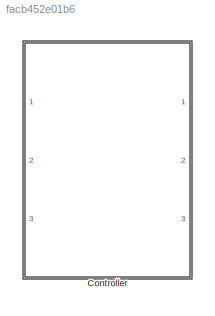
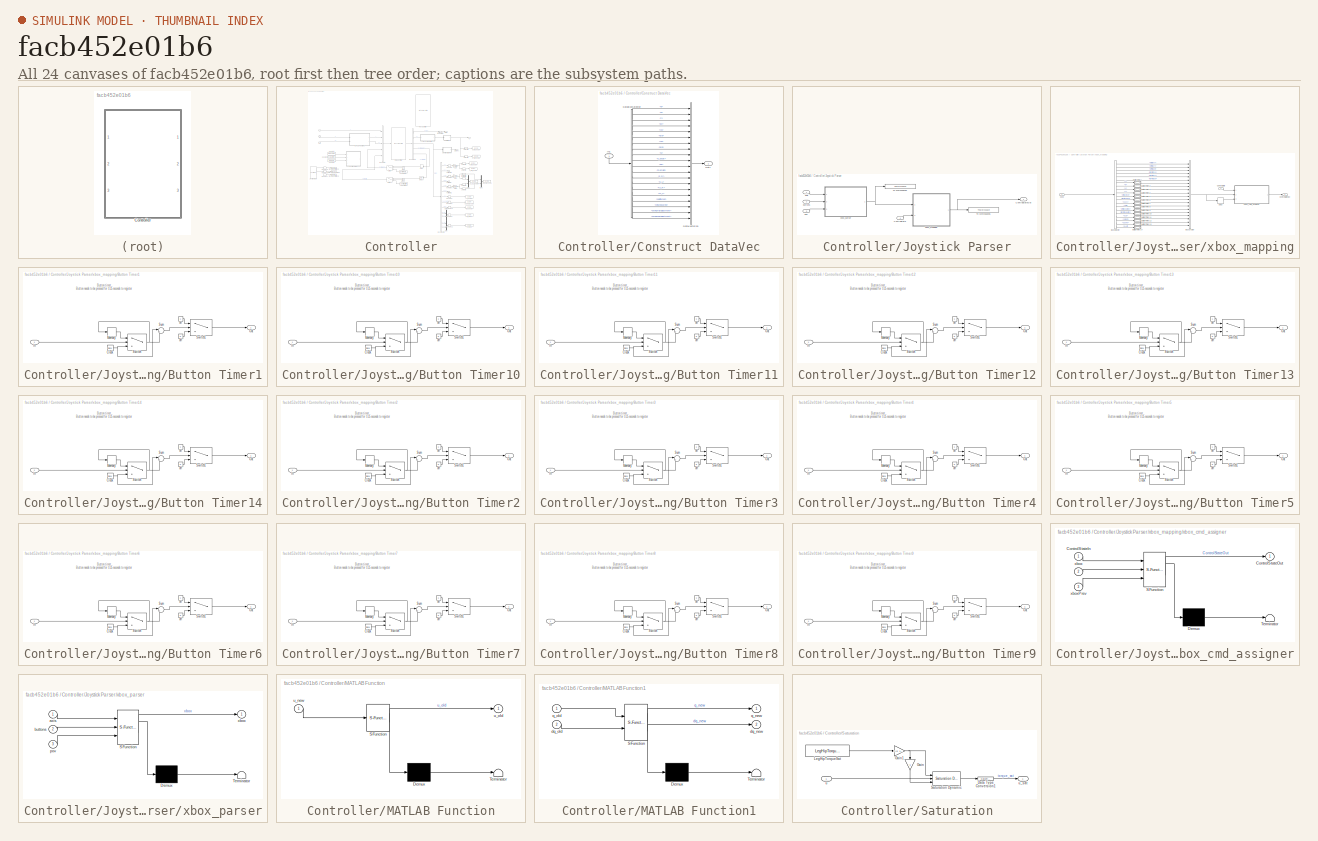
[diagram: thumbnail index - all 24 canvases of the model, root first then tree order]
MODEL slx_facb452e01b6
KIND library
CONFIG AbsTol = auto
CONFIG FixedStep = auto
CONFIG MaxStep = auto
CONFIG MinStep = auto
CONFIG RelTol = 1e-3
CONFIG SampleTimeConstraint = Unconstrained
CONFIG Solver = ode45
CONFIG SolverMode = Auto
CONFIG SolverName = ode45
CONFIG StartTime = 0.0
CONFIG StopTime = 10.0
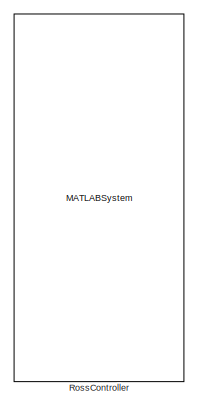
[diagram: Controller - part 1/4, top center region]
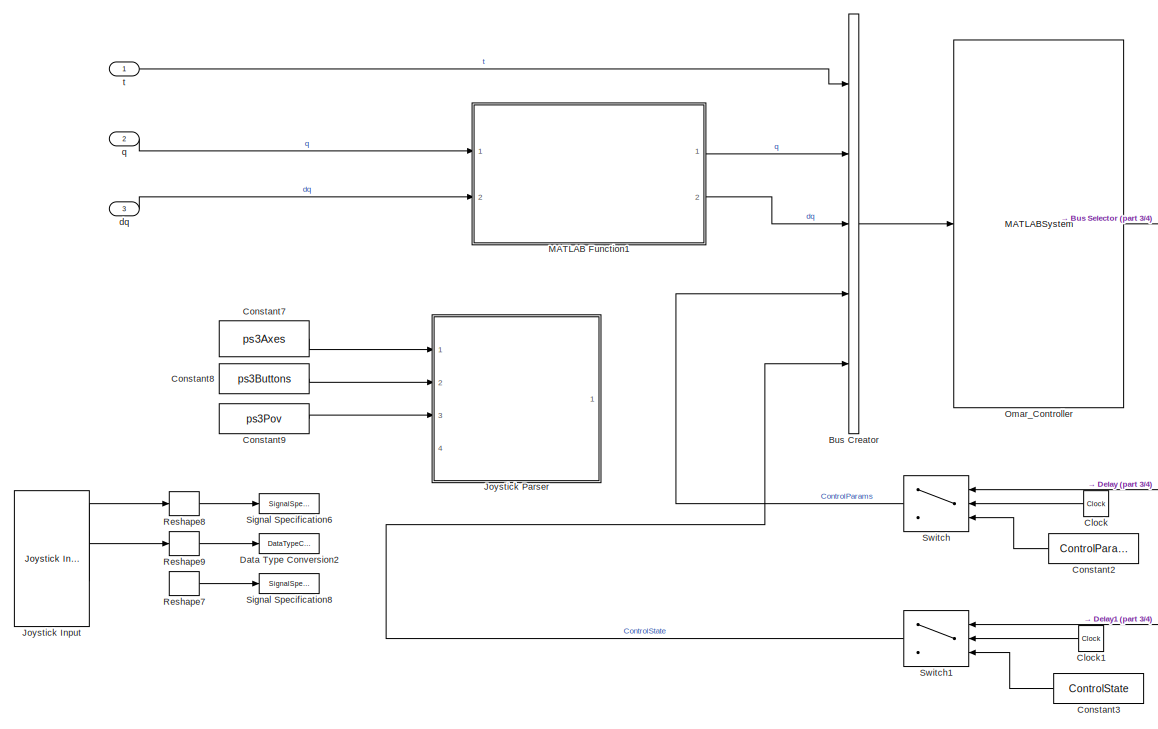
[diagram: Controller - part 2/4, middle left region]
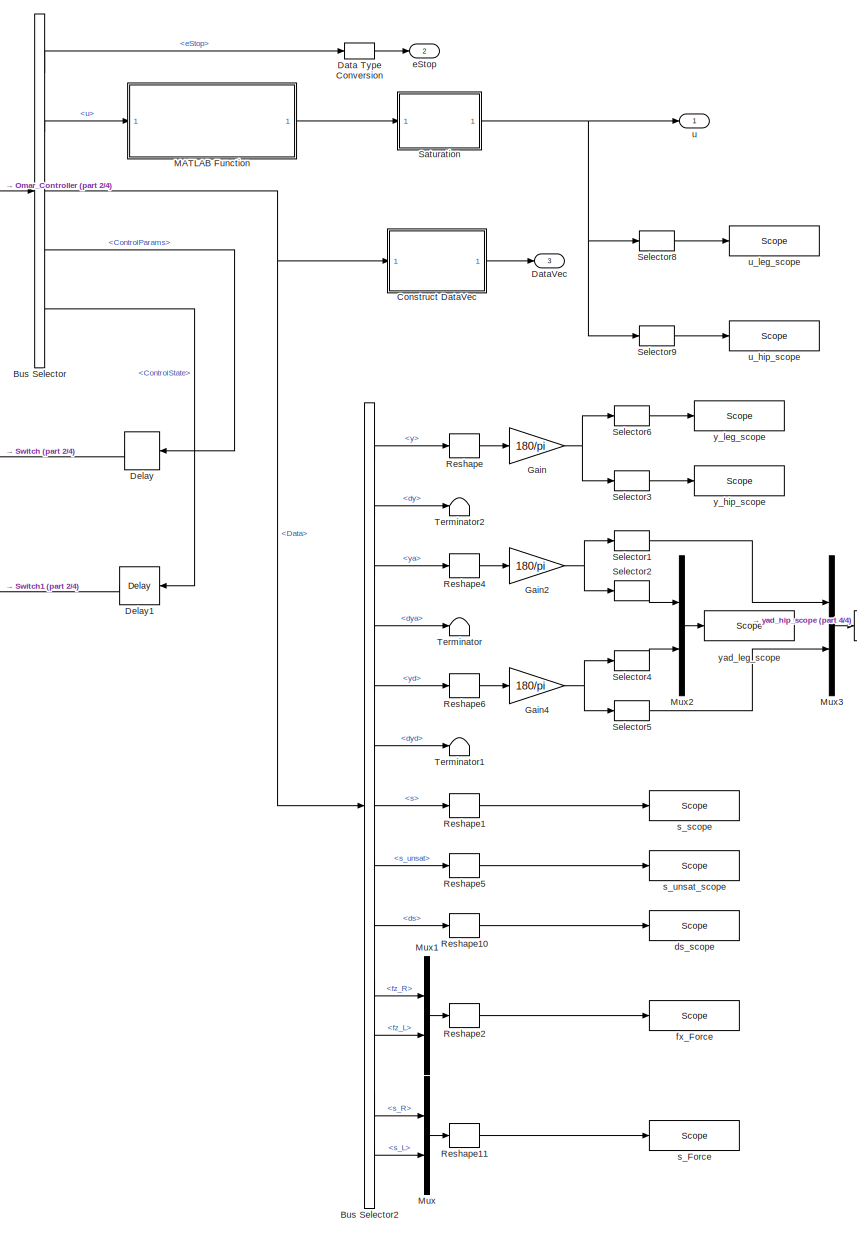
[diagram: Controller - part 3/4, right side, full height]
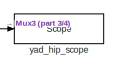
[diagram: Controller - part 4/4, middle right region]
BLOCK [SubSystem] Controller
  Ports = [3, 3]
  RequestExecContextInheritance = off
  Variant = off
BLOCK [BusCreator] Controller/Bus Creator
  DisplayOption = bar
  InheritFromInputs = on
  Inputs = 't','q','dq','ControlParams','ControlState'
  OutDataTypeStr = Bus: Input_bus
  Ports = [5, 1]
BLOCK [BusSelector] Controller/Bus Selector
  OutputSignals = eStop,u,Data,ControlParams,ControlState
  Ports = [1, 5]
BLOCK [BusSelector] Controller/Bus Selector2
  OutputSignals = y,dy,ya,dya,yd,dyd,s,s_unsat,ds,fz_R,fz_L,s_R,s_L
  Ports = [1, 13]
BLOCK [Clock] Controller/Clock
BLOCK [Clock] Controller/Clock1
BLOCK [Constant] Controller/Constant2
  OutDataTypeStr = Bus: ControlParams_bus
  Value = ControlParams
BLOCK [Constant] Controller/Constant3
  OutDataTypeStr = Bus: ControlState_bus
  Value = ControlState
BLOCK [Constant] Controller/Constant7
  Commented = on
  Value = ps3Axes
BLOCK [Constant] Controller/Constant8
  Commented = on
  Value = ps3Buttons
BLOCK [Constant] Controller/Constant9
  Commented = on
  Value = ps3Pov
BLOCK [SubSystem] Controller/Construct DataVec
  Ports = [1, 1]
  RequestExecContextInheritance = off
  Variant = off
BLOCK [BusSelector] Controller/Construct DataVec/DataBusSelector
  OutputSignals = q,u,y,dy,ya,dya,yd,dyd,s,s_unsat,ds,Domain,s_R,s_L,fz_R,fz_L,velFiltered,velMeasured,swingHipAdjustment,swingLegAdjustment
  Ports = [1, 20]
BLOCK [Concatenate] Controller/Construct DataVec/DataVectorize
  NumInputs = 20
  Ports = [20, 1]
BLOCK [Inport] Controller/Construct DataVec/In1
  IconDisplay = Port number
BLOCK [Outport] Controller/Construct DataVec/Out1
  IconDisplay = Port number
BLOCK [DataTypeConversion] Controller/Data Type Conversion
  OutDataTypeStr = double
  RndMeth = Floor
  SaturateOnIntegerOverflow = off
BLOCK [DataTypeConversion] Controller/Data Type Conversion2
  Commented = on
  OutDataTypeStr = double
  RndMeth = Floor
  SaturateOnIntegerOverflow = off
BLOCK [Outport] Controller/DataVec
  IconDisplay = Port number
  Port = 3
BLOCK [Delay] Controller/Delay
  DelayLength = 1
  InitialCondition = 0
  InputPortMap = u0
  InputProcessing = Inherited
  Ports = [1, 1]
BLOCK [Delay] Controller/Delay1
  DelayLength = 1
  InitialCondition = 0
  InputPortMap = u0
  InputProcessing = Inherited
  Ports = [1, 1]
BLOCK [Gain] Controller/Gain
  Gain = 180/pi
  OutDataTypeStr = Inherit: Inherit via internal rule
  ParamDataTypeStr = Inherit: Inherit via internal rule
  SaturateOnIntegerOverflow = off
BLOCK [Gain] Controller/Gain2
  Gain = 180/pi
  OutDataTypeStr = Inherit: Inherit via internal rule
  ParamDataTypeStr = Inherit: Inherit via internal rule
  SaturateOnIntegerOverflow = off
BLOCK [Gain] Controller/Gain4
  Gain = 180/pi
  OutDataTypeStr = Inherit: Inherit via internal rule
  ParamDataTypeStr = Inherit: Inherit via internal rule
  SaturateOnIntegerOverflow = off
BLOCK [Reference] Controller/Joystick Input  REF=vrlib/Joystick Input
  Commented = on
  Ports = [0, 2]
  SourceBlock = vrlib/Joystick Input
  SourceType = Joystick Input
BLOCK [SubSystem] Controller/Joystick Parser
  Commented = on
  Ports = [4, 1]
  RequestExecContextInheritance = off
  Variant = off
BLOCK [Inport] Controller/Joystick Parser/ControlState
  IconDisplay = Port number
  OutDataTypeStr = Bus: ControlState_bus
  Port = 4
BLOCK [Outport] Controller/Joystick Parser/ControlStateOut
  IconDisplay = Port number
  OutDataTypeStr = Bus: ControlState_bus
BLOCK [ToWorkspace] Controller/Joystick Parser/To Workspace5
  MaxDataPoints = inf
  Ports = [1]
  SampleTime = -1
  SaveFormat = Timeseries
  VariableName = xboxOut
BLOCK [ToWorkspace] Controller/Joystick Parser/To Workspace6
  MaxDataPoints = inf
  Ports = [1]
  SampleTime = -1
  SaveFormat = Timeseries
  VariableName = ControlStateOut
BLOCK [Inport] Controller/Joystick Parser/axis
  IconDisplay = Port number
BLOCK [Inport] Controller/Joystick Parser/buttons
  IconDisplay = Port number
  Port = 2
BLOCK [Inport] Controller/Joystick Parser/pov
  IconDisplay = Port number
  Port = 3
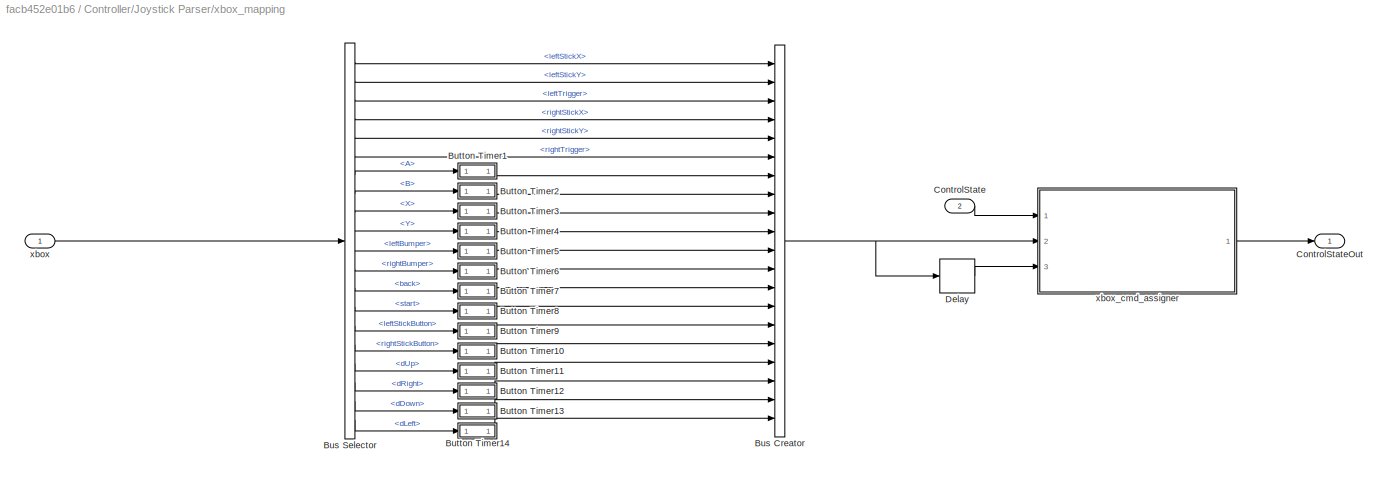
BLOCK [SubSystem] Controller/Joystick Parser/xbox_mapping
  Ports = [2, 1]
  RequestExecContextInheritance = off
  Variant = off
BLOCK [BusCreator] Controller/Joystick Parser/xbox_mapping/Bus Creator
  DisplayOption = bar
  InheritFromInputs = on
  Inputs = 20
  NonVirtualBus = on
  OutDataTypeStr = Bus: xbox_bus
  Ports = [20, 1]
BLOCK [BusSelector] Controller/Joystick Parser/xbox_mapping/Bus Selector
  OutputSignals = leftStickX,leftStickY,leftTrigger,rightStickX,rightStickY,rightTrigger,A,B,X,Y,leftBumper,rightBumper,back,start,leftStickButton,rightStickButton,dUp,dRight,dDown,dLeft
  Ports = [1, 20]
BLOCK [SubSystem] Controller/Joystick Parser/xbox_mapping/Button Timer1
  Ports = [1, 1]
  RequestExecContextInheritance = off
  Variant = off
BLOCK [Clock] Controller/Joystick Parser/xbox_mapping/Button Timer1/Clock
BLOCK [Inport] Controller/Joystick Parser/xbox_mapping/Button Timer1/In
  IconDisplay = Port number
BLOCK [Memory] Controller/Joystick Parser/xbox_mapping/Button Timer1/Memory
BLOCK [Outport] Controller/Joystick Parser/xbox_mapping/Button Timer1/Out
  IconDisplay = Port number
BLOCK [Sum] Controller/Joystick Parser/xbox_mapping/Button Timer1/Sum
  IconShape = round
  InputSameDT = off
  Inputs = |+-
  OutDataTypeStr = Inherit: Inherit via internal rule
  Ports = [2, 1]
  SaturateOnIntegerOverflow = off
BLOCK [Switch] Controller/Joystick Parser/xbox_mapping/Button Timer1/Switch
  Criteria = u2 > Threshold
  InputSameDT = off
  SaturateOnIntegerOverflow = off
BLOCK [Switch] Controller/Joystick Parser/xbox_mapping/Button Timer1/Switch1
  Criteria = u2 > Threshold
  InputSameDT = off
  SaturateOnIntegerOverflow = off
  Threshold = 0.25
BLOCK [Constant] Controller/Joystick Parser/xbox_mapping/Button Timer1/off
  Value = 0
BLOCK [Constant] Controller/Joystick Parser/xbox_mapping/Button Timer1/on
BLOCK [SubSystem] Controller/Joystick Parser/xbox_mapping/Button Timer10
  Ports = [1, 1]
  RequestExecContextInheritance = off
  Variant = off
BLOCK [Clock] Controller/Joystick Parser/xbox_mapping/Button Timer10/Clock
BLOCK [Inport] Controller/Joystick Parser/xbox_mapping/Button Timer10/In
  IconDisplay = Port number
BLOCK [Memory] Controller/Joystick Parser/xbox_mapping/Button Timer10/Memory
BLOCK [Outport] Controller/Joystick Parser/xbox_mapping/Button Timer10/Out
  IconDisplay = Port number
BLOCK [Sum] Controller/Joystick Parser/xbox_mapping/Button Timer10/Sum
  IconShape = round
  InputSameDT = off
  Inputs = |+-
  OutDataTypeStr = Inherit: Inherit via internal rule
  Ports = [2, 1]
  SaturateOnIntegerOverflow = off
BLOCK [Switch] Controller/Joystick Parser/xbox_mapping/Button Timer10/Switch
  Criteria = u2 > Threshold
  InputSameDT = off
  SaturateOnIntegerOverflow = off
BLOCK [Switch] Controller/Joystick Parser/xbox_mapping/Button Timer10/Switch1
  Criteria = u2 > Threshold
  InputSameDT = off
  SaturateOnIntegerOverflow = off
  Threshold = 0.25
BLOCK [Constant] Controller/Joystick Parser/xbox_mapping/Button Timer10/off
  Value = 0
BLOCK [Constant] Controller/Joystick Parser/xbox_mapping/Button Timer10/on
BLOCK [SubSystem] Controller/Joystick Parser/xbox_mapping/Button Timer11
  Ports = [1, 1]
  RequestExecContextInheritance = off
  Variant = off
BLOCK [Clock] Controller/Joystick Parser/xbox_mapping/Button Timer11/Clock
BLOCK [Inport] Controller/Joystick Parser/xbox_mapping/Button Timer11/In
  IconDisplay = Port number
BLOCK [Memory] Controller/Joystick Parser/xbox_mapping/Button Timer11/Memory
BLOCK [Outport] Controller/Joystick Parser/xbox_mapping/Button Timer11/Out
  IconDisplay = Port number
BLOCK [Sum] Controller/Joystick Parser/xbox_mapping/Button Timer11/Sum
  IconShape = round
  InputSameDT = off
  Inputs = |+-
  OutDataTypeStr = Inherit: Inherit via internal rule
  Ports = [2, 1]
  SaturateOnIntegerOverflow = off
BLOCK [Switch] Controller/Joystick Parser/xbox_mapping/Button Timer11/Switch
  Criteria = u2 > Threshold
  InputSameDT = off
  SaturateOnIntegerOverflow = off
BLOCK [Switch] Controller/Joystick Parser/xbox_mapping/Button Timer11/Switch1
  Criteria = u2 > Threshold
  InputSameDT = off
  SaturateOnIntegerOverflow = off
  Threshold = 0.25
BLOCK [Constant] Controller/Joystick Parser/xbox_mapping/Button Timer11/off
  Value = 0
BLOCK [Constant] Controller/Joystick Parser/xbox_mapping/Button Timer11/on
BLOCK [SubSystem] Controller/Joystick Parser/xbox_mapping/Button Timer12
  Ports = [1, 1]
  RequestExecContextInheritance = off
  Variant = off
BLOCK [Clock] Controller/Joystick Parser/xbox_mapping/Button Timer12/Clock
BLOCK [Inport] Controller/Joystick Parser/xbox_mapping/Button Timer12/In
  IconDisplay = Port number
BLOCK [Memory] Controller/Joystick Parser/xbox_mapping/Button Timer12/Memory
BLOCK [Outport] Controller/Joystick Parser/xbox_mapping/Button Timer12/Out
  IconDisplay = Port number
BLOCK [Sum] Controller/Joystick Parser/xbox_mapping/Button Timer12/Sum
  IconShape = round
  InputSameDT = off
  Inputs = |+-
  OutDataTypeStr = Inherit: Inherit via internal rule
  Ports = [2, 1]
  SaturateOnIntegerOverflow = off
BLOCK [Switch] Controller/Joystick Parser/xbox_mapping/Button Timer12/Switch
  Criteria = u2 > Threshold
  InputSameDT = off
  SaturateOnIntegerOverflow = off
BLOCK [Switch] Controller/Joystick Parser/xbox_mapping/Button Timer12/Switch1
  Criteria = u2 > Threshold
  InputSameDT = off
  SaturateOnIntegerOverflow = off
  Threshold = 0.25
BLOCK [Constant] Controller/Joystick Parser/xbox_mapping/Button Timer12/off
  Value = 0
BLOCK [Constant] Controller/Joystick Parser/xbox_mapping/Button Timer12/on
BLOCK [SubSystem] Controller/Joystick Parser/xbox_mapping/Button Timer13
  Ports = [1, 1]
  RequestExecContextInheritance = off
  Variant = off
BLOCK [Clock] Controller/Joystick Parser/xbox_mapping/Button Timer13/Clock
BLOCK [Inport] Controller/Joystick Parser/xbox_mapping/Button Timer13/In
  IconDisplay = Port number
BLOCK [Memory] Controller/Joystick Parser/xbox_mapping/Button Timer13/Memory
BLOCK [Outport] Controller/Joystick Parser/xbox_mapping/Button Timer13/Out
  IconDisplay = Port number
BLOCK [Sum] Controller/Joystick Parser/xbox_mapping/Button Timer13/Sum
  IconShape = round
  InputSameDT = off
  Inputs = |+-
  OutDataTypeStr = Inherit: Inherit via internal rule
  Ports = [2, 1]
  SaturateOnIntegerOverflow = off
BLOCK [Switch] Controller/Joystick Parser/xbox_mapping/Button Timer13/Switch
  Criteria = u2 > Threshold
  InputSameDT = off
  SaturateOnIntegerOverflow = off
BLOCK [Switch] Controller/Joystick Parser/xbox_mapping/Button Timer13/Switch1
  Criteria = u2 > Threshold
  InputSameDT = off
  SaturateOnIntegerOverflow = off
  Threshold = 0.25
BLOCK [Constant] Controller/Joystick Parser/xbox_mapping/Button Timer13/off
  Value = 0
BLOCK [Constant] Controller/Joystick Parser/xbox_mapping/Button Timer13/on
BLOCK [SubSystem] Controller/Joystick Parser/xbox_mapping/Button Timer14
  Ports = [1, 1]
  RequestExecContextInheritance = off
  Variant = off
BLOCK [Clock] Controller/Joystick Parser/xbox_mapping/Button Timer14/Clock
BLOCK [Inport] Controller/Joystick Parser/xbox_mapping/Button Timer14/In
  IconDisplay = Port number
BLOCK [Memory] Controller/Joystick Parser/xbox_mapping/Button Timer14/Memory
BLOCK [Outport] Controller/Joystick Parser/xbox_mapping/Button Timer14/Out
  IconDisplay = Port number
BLOCK [Sum] Controller/Joystick Parser/xbox_mapping/Button Timer14/Sum
  IconShape = round
  InputSameDT = off
  Inputs = |+-
  OutDataTypeStr = Inherit: Inherit via internal rule
  Ports = [2, 1]
  SaturateOnIntegerOverflow = off
BLOCK [Switch] Controller/Joystick Parser/xbox_mapping/Button Timer14/Switch
  Criteria = u2 > Threshold
  InputSameDT = off
  SaturateOnIntegerOverflow = off
BLOCK [Switch] Controller/Joystick Parser/xbox_mapping/Button Timer14/Switch1
  Criteria = u2 > Threshold
  InputSameDT = off
  SaturateOnIntegerOverflow = off
  Threshold = 0.25
BLOCK [Constant] Controller/Joystick Parser/xbox_mapping/Button Timer14/off
  Value = 0
BLOCK [Constant] Controller/Joystick Parser/xbox_mapping/Button Timer14/on
BLOCK [SubSystem] Controller/Joystick Parser/xbox_mapping/Button Timer2
  Ports = [1, 1]
  RequestExecContextInheritance = off
  Variant = off
BLOCK [Clock] Controller/Joystick Parser/xbox_mapping/Button Timer2/Clock
BLOCK [Inport] Controller/Joystick Parser/xbox_mapping/Button Timer2/In
  IconDisplay = Port number
BLOCK [Memory] Controller/Joystick Parser/xbox_mapping/Button Timer2/Memory
BLOCK [Outport] Controller/Joystick Parser/xbox_mapping/Button Timer2/Out
  IconDisplay = Port number
BLOCK [Sum] Controller/Joystick Parser/xbox_mapping/Button Timer2/Sum
  IconShape = round
  InputSameDT = off
  Inputs = |+-
  OutDataTypeStr = Inherit: Inherit via internal rule
  Ports = [2, 1]
  SaturateOnIntegerOverflow = off
BLOCK [Switch] Controller/Joystick Parser/xbox_mapping/Button Timer2/Switch
  Criteria = u2 > Threshold
  InputSameDT = off
  SaturateOnIntegerOverflow = off
BLOCK [Switch] Controller/Joystick Parser/xbox_mapping/Button Timer2/Switch1
  Criteria = u2 > Threshold
  InputSameDT = off
  SaturateOnIntegerOverflow = off
  Threshold = 0.25
BLOCK [Constant] Controller/Joystick Parser/xbox_mapping/Button Timer2/off
  Value = 0
BLOCK [Constant] Controller/Joystick Parser/xbox_mapping/Button Timer2/on
BLOCK [SubSystem] Controller/Joystick Parser/xbox_mapping/Button Timer3
  Ports = [1, 1]
  RequestExecContextInheritance = off
  Variant = off
BLOCK [Clock] Controller/Joystick Parser/xbox_mapping/Button Timer3/Clock
BLOCK [Inport] Controller/Joystick Parser/xbox_mapping/Button Timer3/In
  IconDisplay = Port number
BLOCK [Memory] Controller/Joystick Parser/xbox_mapping/Button Timer3/Memory
BLOCK [Outport] Controller/Joystick Parser/xbox_mapping/Button Timer3/Out
  IconDisplay = Port number
BLOCK [Sum] Controller/Joystick Parser/xbox_mapping/Button Timer3/Sum
  IconShape = round
  InputSameDT = off
  Inputs = |+-
  OutDataTypeStr = Inherit: Inherit via internal rule
  Ports = [2, 1]
  SaturateOnIntegerOverflow = off
BLOCK [Switch] Controller/Joystick Parser/xbox_mapping/Button Timer3/Switch
  Criteria = u2 > Threshold
  InputSameDT = off
  SaturateOnIntegerOverflow = off
BLOCK [Switch] Controller/Joystick Parser/xbox_mapping/Button Timer3/Switch1
  Criteria = u2 > Threshold
  InputSameDT = off
  SaturateOnIntegerOverflow = off
  Threshold = 0.25
BLOCK [Constant] Controller/Joystick Parser/xbox_mapping/Button Timer3/off
  Value = 0
BLOCK [Constant] Controller/Joystick Parser/xbox_mapping/Button Timer3/on
BLOCK [SubSystem] Controller/Joystick Parser/xbox_mapping/Button Timer4
  Ports = [1, 1]
  RequestExecContextInheritance = off
  Variant = off
BLOCK [Clock] Controller/Joystick Parser/xbox_mapping/Button Timer4/Clock
BLOCK [Inport] Controller/Joystick Parser/xbox_mapping/Button Timer4/In
  IconDisplay = Port number
BLOCK [Memory] Controller/Joystick Parser/xbox_mapping/Button Timer4/Memory
BLOCK [Outport] Controller/Joystick Parser/xbox_mapping/Button Timer4/Out
  IconDisplay = Port number
BLOCK [Sum] Controller/Joystick Parser/xbox_mapping/Button Timer4/Sum
  IconShape = round
  InputSameDT = off
  Inputs = |+-
  OutDataTypeStr = Inherit: Inherit via internal rule
  Ports = [2, 1]
  SaturateOnIntegerOverflow = off
BLOCK [Switch] Controller/Joystick Parser/xbox_mapping/Button Timer4/Switch
  Criteria = u2 > Threshold
  InputSameDT = off
  SaturateOnIntegerOverflow = off
BLOCK [Switch] Controller/Joystick Parser/xbox_mapping/Button Timer4/Switch1
  Criteria = u2 > Threshold
  InputSameDT = off
  SaturateOnIntegerOverflow = off
  Threshold = 0.25
BLOCK [Constant] Controller/Joystick Parser/xbox_mapping/Button Timer4/off
  Value = 0
BLOCK [Constant] Controller/Joystick Parser/xbox_mapping/Button Timer4/on
BLOCK [SubSystem] Controller/Joystick Parser/xbox_mapping/Button Timer5
  Ports = [1, 1]
  RequestExecContextInheritance = off
  Variant = off
BLOCK [Clock] Controller/Joystick Parser/xbox_mapping/Button Timer5/Clock
BLOCK [Inport] Controller/Joystick Parser/xbox_mapping/Button Timer5/In
  IconDisplay = Port number
BLOCK [Memory] Controller/Joystick Parser/xbox_mapping/Button Timer5/Memory
BLOCK [Outport] Controller/Joystick Parser/xbox_mapping/Button Timer5/Out
  IconDisplay = Port number
BLOCK [Sum] Controller/Joystick Parser/xbox_mapping/Button Timer5/Sum
  IconShape = round
  InputSameDT = off
  Inputs = |+-
  OutDataTypeStr = Inherit: Inherit via internal rule
  Ports = [2, 1]
  SaturateOnIntegerOverflow = off
BLOCK [Switch] Controller/Joystick Parser/xbox_mapping/Button Timer5/Switch
  Criteria = u2 > Threshold
  InputSameDT = off
  SaturateOnIntegerOverflow = off
BLOCK [Switch] Controller/Joystick Parser/xbox_mapping/Button Timer5/Switch1
  Criteria = u2 > Threshold
  InputSameDT = off
  SaturateOnIntegerOverflow = off
  Threshold = 0.25
BLOCK [Constant] Controller/Joystick Parser/xbox_mapping/Button Timer5/off
  Value = 0
BLOCK [Constant] Controller/Joystick Parser/xbox_mapping/Button Timer5/on
BLOCK [SubSystem] Controller/Joystick Parser/xbox_mapping/Button Timer6
  Ports = [1, 1]
  RequestExecContextInheritance = off
  Variant = off
BLOCK [Clock] Controller/Joystick Parser/xbox_mapping/Button Timer6/Clock
BLOCK [Inport] Controller/Joystick Parser/xbox_mapping/Button Timer6/In
  IconDisplay = Port number
BLOCK [Memory] Controller/Joystick Parser/xbox_mapping/Button Timer6/Memory
BLOCK [Outport] Controller/Joystick Parser/xbox_mapping/Button Timer6/Out
  IconDisplay = Port number
BLOCK [Sum] Controller/Joystick Parser/xbox_mapping/Button Timer6/Sum
  IconShape = round
  InputSameDT = off
  Inputs = |+-
  OutDataTypeStr = Inherit: Inherit via internal rule
  Ports = [2, 1]
  SaturateOnIntegerOverflow = off
BLOCK [Switch] Controller/Joystick Parser/xbox_mapping/Button Timer6/Switch
  Criteria = u2 > Threshold
  InputSameDT = off
  SaturateOnIntegerOverflow = off
BLOCK [Switch] Controller/Joystick Parser/xbox_mapping/Button Timer6/Switch1
  Criteria = u2 > Threshold
  InputSameDT = off
  SaturateOnIntegerOverflow = off
  Threshold = 0.25
BLOCK [Constant] Controller/Joystick Parser/xbox_mapping/Button Timer6/off
  Value = 0
BLOCK [Constant] Controller/Joystick Parser/xbox_mapping/Button Timer6/on
BLOCK [SubSystem] Controller/Joystick Parser/xbox_mapping/Button Timer7
  Ports = [1, 1]
  RequestExecContextInheritance = off
  Variant = off
BLOCK [Clock] Controller/Joystick Parser/xbox_mapping/Button Timer7/Clock
BLOCK [Inport] Controller/Joystick Parser/xbox_mapping/Button Timer7/In
  IconDisplay = Port number
BLOCK [Memory] Controller/Joystick Parser/xbox_mapping/Button Timer7/Memory
BLOCK [Outport] Controller/Joystick Parser/xbox_mapping/Button Timer7/Out
  IconDisplay = Port number
BLOCK [Sum] Controller/Joystick Parser/xbox_mapping/Button Timer7/Sum
  IconShape = round
  InputSameDT = off
  Inputs = |+-
  OutDataTypeStr = Inherit: Inherit via internal rule
  Ports = [2, 1]
  SaturateOnIntegerOverflow = off
BLOCK [Switch] Controller/Joystick Parser/xbox_mapping/Button Timer7/Switch
  Criteria = u2 > Threshold
  InputSameDT = off
  SaturateOnIntegerOverflow = off
BLOCK [Switch] Controller/Joystick Parser/xbox_mapping/Button Timer7/Switch1
  Criteria = u2 > Threshold
  InputSameDT = off
  SaturateOnIntegerOverflow = off
  Threshold = 0.25
BLOCK [Constant] Controller/Joystick Parser/xbox_mapping/Button Timer7/off
  Value = 0
BLOCK [Constant] Controller/Joystick Parser/xbox_mapping/Button Timer7/on
BLOCK [SubSystem] Controller/Joystick Parser/xbox_mapping/Button Timer8
  Ports = [1, 1]
  RequestExecContextInheritance = off
  Variant = off
BLOCK [Clock] Controller/Joystick Parser/xbox_mapping/Button Timer8/Clock
BLOCK [Inport] Controller/Joystick Parser/xbox_mapping/Button Timer8/In
  IconDisplay = Port number
BLOCK [Memory] Controller/Joystick Parser/xbox_mapping/Button Timer8/Memory
BLOCK [Outport] Controller/Joystick Parser/xbox_mapping/Button Timer8/Out
  IconDisplay = Port number
BLOCK [Sum] Controller/Joystick Parser/xbox_mapping/Button Timer8/Sum
  IconShape = round
  InputSameDT = off
  Inputs = |+-
  OutDataTypeStr = Inherit: Inherit via internal rule
  Ports = [2, 1]
  SaturateOnIntegerOverflow = off
BLOCK [Switch] Controller/Joystick Parser/xbox_mapping/Button Timer8/Switch
  Criteria = u2 > Threshold
  InputSameDT = off
  SaturateOnIntegerOverflow = off
BLOCK [Switch] Controller/Joystick Parser/xbox_mapping/Button Timer8/Switch1
  Criteria = u2 > Threshold
  InputSameDT = off
  SaturateOnIntegerOverflow = off
  Threshold = 0.25
BLOCK [Constant] Controller/Joystick Parser/xbox_mapping/Button Timer8/off
  Value = 0
BLOCK [Constant] Controller/Joystick Parser/xbox_mapping/Button Timer8/on
BLOCK [SubSystem] Controller/Joystick Parser/xbox_mapping/Button Timer9
  Ports = [1, 1]
  RequestExecContextInheritance = off
  Variant = off
BLOCK [Clock] Controller/Joystick Parser/xbox_mapping/Button Timer9/Clock
BLOCK [Inport] Controller/Joystick Parser/xbox_mapping/Button Timer9/In
  IconDisplay = Port number
BLOCK [Memory] Controller/Joystick Parser/xbox_mapping/Button Timer9/Memory
BLOCK [Outport] Controller/Joystick Parser/xbox_mapping/Button Timer9/Out
  IconDisplay = Port number
BLOCK [Sum] Controller/Joystick Parser/xbox_mapping/Button Timer9/Sum
  IconShape = round
  InputSameDT = off
  Inputs = |+-
  OutDataTypeStr = Inherit: Inherit via internal rule
  Ports = [2, 1]
  SaturateOnIntegerOverflow = off
BLOCK [Switch] Controller/Joystick Parser/xbox_mapping/Button Timer9/Switch
  Criteria = u2 > Threshold
  InputSameDT = off
  SaturateOnIntegerOverflow = off
BLOCK [Switch] Controller/Joystick Parser/xbox_mapping/Button Timer9/Switch1
  Criteria = u2 > Threshold
  InputSameDT = off
  SaturateOnIntegerOverflow = off
  Threshold = 0.25
BLOCK [Constant] Controller/Joystick Parser/xbox_mapping/Button Timer9/off
  Value = 0
BLOCK [Constant] Controller/Joystick Parser/xbox_mapping/Button Timer9/on
BLOCK [Inport] Controller/Joystick Parser/xbox_mapping/ControlState
  IconDisplay = Port number
  OutDataTypeStr = Bus: ControlState_bus
  Port = 2
BLOCK [Outport] Controller/Joystick Parser/xbox_mapping/ControlStateOut
  IconDisplay = Port number
  OutDataTypeStr = Bus: ControlState_bus
BLOCK [Delay] Controller/Joystick Parser/xbox_mapping/Delay
  DelayLength = 1
  InitialCondition = 0
  InputPortMap = u0
  Ports = [1, 1]
BLOCK [Inport] Controller/Joystick Parser/xbox_mapping/xbox
  IconDisplay = Port number
BLOCK [SubSystem] Controller/Joystick Parser/xbox_mapping/xbox_cmd_assigner
  ErrorFcn = Stateflow.Translate.translate
  PermitHierarchicalResolution = ExplicitOnly
  Ports = [3, 1]
  RequestExecContextInheritance = off
  SFBlockType = MATLAB Function
  TreatAsAtomicUnit = on
  Variant = off
BLOCK [Demux] Controller/Joystick Parser/xbox_mapping/xbox_cmd_assigner/ Demux 
  Outputs = 1
  Ports = [1, 1]
BLOCK [S-Function] Controller/Joystick Parser/xbox_mapping/xbox_cmd_assigner/ SFunction 
  EnableBusSupport = off
  FunctionName = sf_sfun
  PortCounts = [3 2]
  Ports = [3, 2]
  SFunctionDeploymentMode = off
  Tag = Stateflow S-Function ControllerLibrary 10
BLOCK [Terminator] Controller/Joystick Parser/xbox_mapping/xbox_cmd_assigner/ Terminator 
BLOCK [Inport] Controller/Joystick Parser/xbox_mapping/xbox_cmd_assigner/ControlStateIn
  IconDisplay = Port number
BLOCK [Outport] Controller/Joystick Parser/xbox_mapping/xbox_cmd_assigner/ControlStateOut
  IconDisplay = Port number
BLOCK [Inport] Controller/Joystick Parser/xbox_mapping/xbox_cmd_assigner/xbox
  IconDisplay = Port number
  Port = 2
BLOCK [Inport] Controller/Joystick Parser/xbox_mapping/xbox_cmd_assigner/xboxPrev
  IconDisplay = Port number
  Port = 3
BLOCK [SubSystem] Controller/Joystick Parser/xbox_parser
  ErrorFcn = Stateflow.Translate.translate
  PermitHierarchicalResolution = ExplicitOnly
  Ports = [3, 1]
  RequestExecContextInheritance = off
  SFBlockType = MATLAB Function
  TreatAsAtomicUnit = on
  Variant = off
BLOCK [Demux] Controller/Joystick Parser/xbox_parser/ Demux 
  Outputs = 1
  Ports = [1, 1]
BLOCK [S-Function] Controller/Joystick Parser/xbox_parser/ SFunction 
  EnableBusSupport = off
  FunctionName = sf_sfun
  PortCounts = [3 2]
  Ports = [3, 2]
  SFunctionDeploymentMode = off
  Tag = Stateflow S-Function ControllerLibrary 12
BLOCK [Terminator] Controller/Joystick Parser/xbox_parser/ Terminator 
BLOCK [Inport] Controller/Joystick Parser/xbox_parser/axis
  IconDisplay = Port number
BLOCK [Inport] Controller/Joystick Parser/xbox_parser/buttons
  IconDisplay = Port number
  Port = 2
BLOCK [Inport] Controller/Joystick Parser/xbox_parser/pov
  IconDisplay = Port number
  Port = 3
BLOCK [Outport] Controller/Joystick Parser/xbox_parser/xbox
  IconDisplay = Port number
BLOCK [SubSystem] Controller/MATLAB Function
  ErrorFcn = Stateflow.Translate.translate
  PermitHierarchicalResolution = ExplicitOnly
  Ports = [1, 1]
  RequestExecContextInheritance = off
  SFBlockType = MATLAB Function
  TreatAsAtomicUnit = on
  Variant = off
BLOCK [Demux] Controller/MATLAB Function/ Demux 
  Outputs = 1
  Ports = [1, 1]
BLOCK [S-Function] Controller/MATLAB Function/ SFunction 
  EnableBusSupport = off
  FunctionName = sf_sfun
  PortCounts = [1 2]
  Ports = [1, 2]
  SFunctionDeploymentMode = off
  Tag = Stateflow S-Function ControllerLibrary 5
BLOCK [Terminator] Controller/MATLAB Function/ Terminator 
BLOCK [Inport] Controller/MATLAB Function/u_new
  IconDisplay = Port number
BLOCK [Outport] Controller/MATLAB Function/u_old
  IconDisplay = Port number
BLOCK [SubSystem] Controller/MATLAB Function1
  ErrorFcn = Stateflow.Translate.translate
  PermitHierarchicalResolution = ExplicitOnly
  Ports = [2, 2]
  RequestExecContextInheritance = off
  SFBlockType = MATLAB Function
  TreatAsAtomicUnit = on
  Variant = off
BLOCK [Demux] Controller/MATLAB Function1/ Demux 
  Outputs = 1
  Ports = [1, 1]
BLOCK [S-Function] Controller/MATLAB Function1/ SFunction 
  EnableBusSupport = off
  FunctionName = sf_sfun
  PortCounts = [2 3]
  Ports = [2, 3]
  SFunctionDeploymentMode = off
  Tag = Stateflow S-Function ControllerLibrary 7
BLOCK [Terminator] Controller/MATLAB Function1/ Terminator 
BLOCK [Outport] Controller/MATLAB Function1/dq_new
  IconDisplay = Port number
  Port = 2
BLOCK [Inport] Controller/MATLAB Function1/dq_old
  IconDisplay = Port number
  Port = 2
BLOCK [Outport] Controller/MATLAB Function1/q_new
  IconDisplay = Port number
BLOCK [Inport] Controller/MATLAB Function1/q_old
  IconDisplay = Port number
BLOCK [Mux] Controller/Mux
  DisplayOption = bar
  Inputs = 2
  Ports = [2, 1]
BLOCK [Mux] Controller/Mux1
  DisplayOption = bar
  Inputs = 2
  Ports = [2, 1]
BLOCK [Mux] Controller/Mux2
  DisplayOption = bar
  Inputs = 2
  Ports = [2, 1]
BLOCK [Mux] Controller/Mux3
  DisplayOption = bar
  Inputs = 2
  Ports = [2, 1]
BLOCK [MATLABSystem] Controller/Omar_Controller
  Kd = []
  Kfd_p = []
  Kfd_r = []
  Kfp_p = []
  Kfp_r = []
  Kp = []
  MaskDisplay = disp('Omar_Controller');\nport_label('input',1,'input');\nport_label('output',1,'output');
  MaskType = CompliantController.Omar_Controller
  OutputBusName = Output_bus
  Ports = [1, 1]
  SimulateUsing = Code generation
  System = CompliantController.Omar_Controller
  isSim = isSim
  pitch_fil_para = []
  roll_fil_para = []
BLOCK [Reshape] Controller/Reshape
  Ports = [1, 1]
BLOCK [Reshape] Controller/Reshape1
  Ports = [1, 1]
BLOCK [Reshape] Controller/Reshape10
  Ports = [1, 1]
BLOCK [Reshape] Controller/Reshape11
  Ports = [1, 1]
BLOCK [Reshape] Controller/Reshape2
  Ports = [1, 1]
BLOCK [Reshape] Controller/Reshape4
  Ports = [1, 1]
BLOCK [Reshape] Controller/Reshape5
  Ports = [1, 1]
BLOCK [Reshape] Controller/Reshape6
  Ports = [1, 1]
BLOCK [Reshape] Controller/Reshape7
  Commented = on
  OutputDimensionality = Row vector (2-D)
  Ports = [1, 1]
BLOCK [Reshape] Controller/Reshape8
  Commented = on
  OutputDimensionality = Row vector (2-D)
  Ports = [1, 1]
BLOCK [Reshape] Controller/Reshape9
  Commented = on
  OutputDimensionality = Row vector (2-D)
  Ports = [1, 1]
BLOCK [MATLABSystem] Controller/RossController
  Commented = on
  MaskDisplay = disp('Ross_Controller_obj');\nport_label('input',1,'input');\nport_label('output',1,'output');
  MaskType = Ross_Controller_obj
  OutputBusName = Output_bus
  Ports = [1, 1]
  SimulateUsing = Interpreted execution
  System = Ross_Controller_obj
  isSim = true
  isTest_constantHips = false
  isTest_doubleSupport = false
  isTest_hipTracking = false
  isTest_holdInAir = false
  isTest_stopAndGo = false
  kd_pitch = 1
  kd_roll = 1
  kd_sha = 0.2
  kd_sla = 0.1
  kd_stanceHip = 1
  kd_stanceKnee = 1
  kd_stanceLeg = 1
  kd_swingHip = 1
  kd_swingKnee = 1
  kd_swingLeg = 1
  kf_sha = 0.15
  kf_sla = 0
  kg_sha = 0
  kg_sla = 0
  ki_sha = 0
  ki_sla = 0
  kp_pitch = 40
  kp_roll = 40
  kp_sha = 0.1
  kp_sla = 0.3
  kp_stanceHip = 40
  kp_stanceKnee = 40
  kp_stanceLeg = 40
  kp_swingHip = 40
  kp_swingKnee = 40
  kp_swingLeg = 40
  leg_length = 0.6
  springDeflectionImpactThreshold = 0.0262
  tau = 0.25
  thres_hi = 250
  thres_lo = 150
  torso_com_offset = [ 0; 0; 0 ]
  uHipGravity = 0.9
BLOCK [SubSystem] Controller/Saturation
  Ports = [1, 1]
  RequestExecContextInheritance = off
  Variant = off
BLOCK [DataTypeConversion] Controller/Saturation/Data Type Conversion1
  OutDataTypeStr = double
  RndMeth = Floor
  SaturateOnIntegerOverflow = off
BLOCK [Gain] Controller/Saturation/Gain
  Gain = -1
  OutDataTypeStr = Inherit: Inherit via internal rule
  ParamDataTypeStr = Inherit: Inherit via internal rule
  SaturateOnIntegerOverflow = off
BLOCK [Gain] Controller/Saturation/Gain1
  Gain = [1 0; 1 0; 0 1; 1 0; 1 0; 0 1]
  Multiplication = Matrix(K*u)
  OutDataTypeStr = Inherit: Inherit via internal rule
  ParamDataTypeStr = Inherit: Inherit via internal rule
  SaturateOnIntegerOverflow = off
BLOCK [Constant] Controller/Saturation/LegHipTorqueSat
  Value = LegHipTorqueLimit
BLOCK [Reference] Controller/Saturation/Saturation Dynamic  REF=simulink/Discontinuities/Saturation
Dynamic
  Ports = [3, 1]
  SourceBlock = simulink/Discontinuities/Saturation\nDynamic
  SourceType = Saturation Dynamic
BLOCK [Inport] Controller/Saturation/u
  IconDisplay = Port number
BLOCK [Outport] Controller/Saturation/u_sat
  IconDisplay = Port number
  OutDataTypeStr = double
BLOCK [Selector] Controller/Selector1
  IndexOptions = Index vector (dialog)
  Indices = [1,4]
  InputPortWidth = 6
  OutputSizes = 1
  Ports = [1, 1]
BLOCK [Selector] Controller/Selector2
  IndexOptions = Index vector (dialog)
  Indices = [2,3,5,6]
  InputPortWidth = 6
  OutputSizes = 1
  Ports = [1, 1]
BLOCK [Selector] Controller/Selector3
  IndexOptions = Index vector (dialog)
  Indices = [1, 4]
  InputPortWidth = 6
  OutputSizes = 1
  Ports = [1, 1]
BLOCK [Selector] Controller/Selector4
  IndexOptions = Index vector (dialog)
  Indices = [2,3,5,6]
  InputPortWidth = 6
  OutputSizes = 1
  Ports = [1, 1]
BLOCK [Selector] Controller/Selector5
  IndexOptions = Index vector (dialog)
  Indices = [1,4]
  InputPortWidth = 6
  OutputSizes = 1
  Ports = [1, 1]
BLOCK [Selector] Controller/Selector6
  IndexOptions = Index vector (dialog)
  Indices = [2,3,5,6]
  InputPortWidth = 6
  OutputSizes = 1
  Ports = [1, 1]
BLOCK [Selector] Controller/Selector8
  IndexOptions = Index vector (dialog)
  Indices = [1, 2, 4, 5]
  InputPortWidth = 6
  OutputSizes = 1
  Ports = [1, 1]
BLOCK [Selector] Controller/Selector9
  IndexOptions = Index vector (dialog)
  Indices = [3, 6]
  InputPortWidth = 6
  OutputSizes = 1
  Ports = [1, 1]
BLOCK [SignalSpecification] Controller/Signal Specification6
  Commented = on
  Dimensions = 5
  OutDataTypeStr = double
BLOCK [SignalSpecification] Controller/Signal Specification8
  Commented = on
  OutDataTypeStr = double
BLOCK [Switch] Controller/Switch
  Criteria = u2 > Threshold
  InputSameDT = off
  SaturateOnIntegerOverflow = off
BLOCK [Switch] Controller/Switch1
  Criteria = u2 > Threshold
  InputSameDT = off
  SaturateOnIntegerOverflow = off
BLOCK [Terminator] Controller/Terminator
BLOCK [Terminator] Controller/Terminator1
BLOCK [Terminator] Controller/Terminator2
BLOCK [Inport] Controller/dq
  IconDisplay = Port number
  Port = 3
BLOCK [Reference] Controller/ds_scope  REF=slrtlib/Displays and
Logging/Scope 
  Ports = [1]
  SourceBlock = slrtlib/Displays and\nLogging/Scope
  SourceType = xpcscopeblock
BLOCK [Outport] Controller/eStop
  IconDisplay = Port number
  OutDataTypeStr = double
  Port = 2
BLOCK [Reference] Controller/fx_Force  REF=slrtlib/Displays and
Logging/Scope 
  Ports = [1]
  SourceBlock = slrtlib/Displays and\nLogging/Scope
  SourceType = xpcscopeblock
BLOCK [Inport] Controller/q
  IconDisplay = Port number
  Port = 2
BLOCK [Reference] Controller/s_Force  REF=slrtlib/Displays and
Logging/Scope 
  Ports = [1]
  SourceBlock = slrtlib/Displays and\nLogging/Scope
  SourceType = xpcscopeblock
BLOCK [Reference] Controller/s_scope  REF=slrtlib/Displays and
Logging/Scope 
  Ports = [1]
  SourceBlock = slrtlib/Displays and\nLogging/Scope
  SourceType = xpcscopeblock
BLOCK [Reference] Controller/s_unsat_scope  REF=slrtlib/Displays and
Logging/Scope 
  Ports = [1]
  SourceBlock = slrtlib/Displays and\nLogging/Scope
  SourceType = xpcscopeblock
BLOCK [Inport] Controller/t
  IconDisplay = Port number
BLOCK [Outport] Controller/u
  IconDisplay = Port number
  OutDataTypeStr = double
BLOCK [Reference] Controller/u_hip_scope  REF=slrtlib/Displays and
Logging/Scope 
  Ports = [1]
  SourceBlock = slrtlib/Displays and\nLogging/Scope
  SourceType = xpcscopeblock
BLOCK [Reference] Controller/u_leg_scope  REF=slrtlib/Displays and
Logging/Scope 
  Ports = [1]
  SourceBlock = slrtlib/Displays and\nLogging/Scope
  SourceType = xpcscopeblock
BLOCK [Reference] Controller/y_hip_scope  REF=slrtlib/Displays and
Logging/Scope 
  Ports = [1]
  SourceBlock = slrtlib/Displays and\nLogging/Scope
  SourceType = xpcscopeblock
BLOCK [Reference] Controller/y_leg_scope  REF=slrtlib/Displays and
Logging/Scope 
  Ports = [1]
  SourceBlock = slrtlib/Displays and\nLogging/Scope
  SourceType = xpcscopeblock
BLOCK [Reference] Controller/yad_hip_scope  REF=slrtlib/Displays and
Logging/Scope 
  Ports = [1]
  SourceBlock = slrtlib/Displays and\nLogging/Scope
  SourceType = xpcscopeblock
BLOCK [Reference] Controller/yad_leg_scope  REF=slrtlib/Displays and
Logging/Scope 
  Ports = [1]
  SourceBlock = slrtlib/Displays and\nLogging/Scope
  SourceType = xpcscopeblock
ANNOTATION Controller/Joystick Parser/xbox_mapping/Button Timer1: Button timer Button needs to be pressed for 0.25 seconds to register
ANNOTATION Controller/Joystick Parser/xbox_mapping/Button Timer10: Button timer Button needs to be pressed for 0.25 seconds to register
ANNOTATION Controller/Joystick Parser/xbox_mapping/Button Timer11: Button timer Button needs to be pressed for 0.25 seconds to register
ANNOTATION Controller/Joystick Parser/xbox_mapping/Button Timer12: Button timer Button needs to be pressed for 0.25 seconds to register
ANNOTATION Controller/Joystick Parser/xbox_mapping/Button Timer13: Button timer Button needs to be pressed for 0.25 seconds to register
ANNOTATION Controller/Joystick Parser/xbox_mapping/Button Timer14: Button timer Button needs to be pressed for 0.25 seconds to register
ANNOTATION Controller/Joystick Parser/xbox_mapping/Button Timer2: Button timer Button needs to be pressed for 0.25 seconds to register
ANNOTATION Controller/Joystick Parser/xbox_mapping/Button Timer3: Button timer Button needs to be pressed for 0.25 seconds to register
ANNOTATION Controller/Joystick Parser/xbox_mapping/Button Timer4: Button timer Button needs to be pressed for 0.25 seconds to register
ANNOTATION Controller/Joystick Parser/xbox_mapping/Button Timer5: Button timer Button needs to be pressed for 0.25 seconds to register
ANNOTATION Controller/Joystick Parser/xbox_mapping/Button Timer6: Button timer Button needs to be pressed for 0.25 seconds to register
ANNOTATION Controller/Joystick Parser/xbox_mapping/Button Timer7: Button timer Button needs to be pressed for 0.25 seconds to register
ANNOTATION Controller/Joystick Parser/xbox_mapping/Button Timer8: Button timer Button needs to be pressed for 0.25 seconds to register
ANNOTATION Controller/Joystick Parser/xbox_mapping/Button Timer9: Button timer Button needs to be pressed for 0.25 seconds to register
LINE Controller/Bus Creator:1 -> Controller/Omar_Controller:1
LINE Controller/Bus Selector2:1 -> Controller/Reshape:1
LINE Controller/Bus Selector2:10 -> Controller/Mux1:1
LINE Controller/Bus Selector2:11 -> Controller/Mux1:2
LINE Controller/Bus Selector2:12 -> Controller/Mux:1
LINE Controller/Bus Selector2:13 -> Controller/Mux:2
LINE Controller/Bus Selector2:2 -> Controller/Terminator2:1
LINE Controller/Bus Selector2:3 -> Controller/Reshape4:1
LINE Controller/Bus Selector2:4 -> Controller/Terminator:1
LINE Controller/Bus Selector2:5 -> Controller/Reshape6:1
LINE Controller/Bus Selector2:6 -> Controller/Terminator1:1
LINE Controller/Bus Selector2:7 -> Controller/Reshape1:1
LINE Controller/Bus Selector2:8 -> Controller/Reshape5:1
LINE Controller/Bus Selector2:9 -> Controller/Reshape10:1
LINE Controller/Bus Selector:1 -> Controller/Data Type Conversion:1
LINE Controller/Bus Selector:2 -> Controller/MATLAB Function:1
NET Controller/Bus Selector:3 -> Controller/Bus Selector2:1, Controller/Construct DataVec:1
LINE Controller/Bus Selector:4 -> Controller/Delay:1
LINE Controller/Bus Selector:5 -> Controller/Delay1:1
LINE Controller/Clock1:1 -> Controller/Switch1:2
LINE Controller/Clock:1 -> Controller/Switch:2
LINE Controller/Constant2:1 -> Controller/Switch:3
LINE Controller/Constant3:1 -> Controller/Switch1:3
LINE Controller/Constant7:1 -> Controller/Joystick Parser:1
LINE Controller/Constant8:1 -> Controller/Joystick Parser:2
LINE Controller/Constant9:1 -> Controller/Joystick Parser:3
LINE Controller/Construct DataVec/DataBusSelector:1 -> Controller/Construct DataVec/DataVectorize:1
LINE Controller/Construct DataVec/DataBusSelector:10 -> Controller/Construct DataVec/DataVectorize:10
LINE Controller/Construct DataVec/DataBusSelector:11 -> Controller/Construct DataVec/DataVectorize:11
LINE Controller/Construct DataVec/DataBusSelector:12 -> Controller/Construct DataVec/DataVectorize:12
LINE Controller/Construct DataVec/DataBusSelector:13 -> Controller/Construct DataVec/DataVectorize:13
LINE Controller/Construct DataVec/DataBusSelector:14 -> Controller/Construct DataVec/DataVectorize:14
LINE Controller/Construct DataVec/DataBusSelector:15 -> Controller/Construct DataVec/DataVectorize:15
LINE Controller/Construct DataVec/DataBusSelector:16 -> Controller/Construct DataVec/DataVectorize:16
LINE Controller/Construct DataVec/DataBusSelector:17 -> Controller/Construct DataVec/DataVectorize:17
LINE Controller/Construct DataVec/DataBusSelector:18 -> Controller/Construct DataVec/DataVectorize:18
LINE Controller/Construct DataVec/DataBusSelector:19 -> Controller/Construct DataVec/DataVectorize:19
LINE Controller/Construct DataVec/DataBusSelector:2 -> Controller/Construct DataVec/DataVectorize:2
LINE Controller/Construct DataVec/DataBusSelector:20 -> Controller/Construct DataVec/DataVectorize:20
LINE Controller/Construct DataVec/DataBusSelector:3 -> Controller/Construct DataVec/DataVectorize:3
LINE Controller/Construct DataVec/DataBusSelector:4 -> Controller/Construct DataVec/DataVectorize:4
LINE Controller/Construct DataVec/DataBusSelector:5 -> Controller/Construct DataVec/DataVectorize:5
LINE Controller/Construct DataVec/DataBusSelector:6 -> Controller/Construct DataVec/DataVectorize:6
LINE Controller/Construct DataVec/DataBusSelector:7 -> Controller/Construct DataVec/DataVectorize:7
LINE Controller/Construct DataVec/DataBusSelector:8 -> Controller/Construct DataVec/DataVectorize:8
LINE Controller/Construct DataVec/DataBusSelector:9 -> Controller/Construct DataVec/DataVectorize:9
LINE Controller/Construct DataVec/DataVectorize:1 -> Controller/Construct DataVec/Out1:1
LINE Controller/Construct DataVec/In1:1 -> Controller/Construct DataVec/DataBusSelector:1
LINE Controller/Construct DataVec:1 -> Controller/DataVec:1
LINE Controller/Data Type Conversion:1 -> Controller/eStop:1
LINE Controller/Delay1:1 -> Controller/Switch1:1
LINE Controller/Delay:1 -> Controller/Switch:1
NET Controller/Gain2:1 -> Controller/Selector1:1, Controller/Selector2:1
NET Controller/Gain4:1 -> Controller/Selector4:1, Controller/Selector5:1
NET Controller/Gain:1 -> Controller/Selector3:1, Controller/Selector6:1
LINE Controller/Joystick Input:1 -> Controller/Reshape8:1
LINE Controller/Joystick Input:2 -> Controller/Reshape9:1
LINE Controller/Joystick Parser/ControlState:1 -> Controller/Joystick Parser/xbox_mapping:2
LINE Controller/Joystick Parser/axis:1 -> Controller/Joystick Parser/xbox_parser:1
LINE Controller/Joystick Parser/buttons:1 -> Controller/Joystick Parser/xbox_parser:2
LINE Controller/Joystick Parser/pov:1 -> Controller/Joystick Parser/xbox_parser:3
NET Controller/Joystick Parser/xbox_mapping/Bus Creator:1 -> Controller/Joystick Parser/xbox_mapping/Delay:1, Controller/Joystick Parser/xbox_mapping/xbox_cmd_assigner:2
LINE Controller/Joystick Parser/xbox_mapping/Bus Selector:1 -> Controller/Joystick Parser/xbox_mapping/Bus Creator:1
LINE Controller/Joystick Parser/xbox_mapping/Bus Selector:10 -> Controller/Joystick Parser/xbox_mapping/Button Timer4:1
LINE Controller/Joystick Parser/xbox_mapping/Bus Selector:11 -> Controller/Joystick Parser/xbox_mapping/Button Timer5:1
LINE Controller/Joystick Parser/xbox_mapping/Bus Selector:12 -> Controller/Joystick Parser/xbox_mapping/Button Timer6:1
LINE Controller/Joystick Parser/xbox_mapping/Bus Selector:13 -> Controller/Joystick Parser/xbox_mapping/Button Timer7:1
LINE Controller/Joystick Parser/xbox_mapping/Bus Selector:14 -> Controller/Joystick Parser/xbox_mapping/Button Timer8:1
LINE Controller/Joystick Parser/xbox_mapping/Bus Selector:15 -> Controller/Joystick Parser/xbox_mapping/Button Timer9:1
LINE Controller/Joystick Parser/xbox_mapping/Bus Selector:16 -> Controller/Joystick Parser/xbox_mapping/Button Timer10:1
LINE Controller/Joystick Parser/xbox_mapping/Bus Selector:17 -> Controller/Joystick Parser/xbox_mapping/Button Timer11:1
LINE Controller/Joystick Parser/xbox_mapping/Bus Selector:18 -> Controller/Joystick Parser/xbox_mapping/Button Timer12:1
LINE Controller/Joystick Parser/xbox_mapping/Bus Selector:19 -> Controller/Joystick Parser/xbox_mapping/Button Timer13:1
LINE Controller/Joystick Parser/xbox_mapping/Bus Selector:2 -> Controller/Joystick Parser/xbox_mapping/Bus Creator:2
LINE Controller/Joystick Parser/xbox_mapping/Bus Selector:20 -> Controller/Joystick Parser/xbox_mapping/Button Timer14:1
LINE Controller/Joystick Parser/xbox_mapping/Bus Selector:3 -> Controller/Joystick Parser/xbox_mapping/Bus Creator:3
LINE Controller/Joystick Parser/xbox_mapping/Bus Selector:4 -> Controller/Joystick Parser/xbox_mapping/Bus Creator:4
LINE Controller/Joystick Parser/xbox_mapping/Bus Selector:5 -> Controller/Joystick Parser/xbox_mapping/Bus Creator:5
LINE Controller/Joystick Parser/xbox_mapping/Bus Selector:6 -> Controller/Joystick Parser/xbox_mapping/Bus Creator:6
LINE Controller/Joystick Parser/xbox_mapping/Bus Selector:7 -> Controller/Joystick Parser/xbox_mapping/Button Timer1:1
LINE Controller/Joystick Parser/xbox_mapping/Bus Selector:8 -> Controller/Joystick Parser/xbox_mapping/Button Timer2:1
LINE Controller/Joystick Parser/xbox_mapping/Bus Selector:9 -> Controller/Joystick Parser/xbox_mapping/Button Timer3:1
NET Controller/Joystick Parser/xbox_mapping/Button Timer1/Clock:1 -> Controller/Joystick Parser/xbox_mapping/Button Timer1/Sum:1, Controller/Joystick Parser/xbox_mapping/Button Timer1/Switch:3
LINE Controller/Joystick Parser/xbox_mapping/Button Timer1/In:1 -> Controller/Joystick Parser/xbox_mapping/Button Timer1/Switch:2
LINE Controller/Joystick Parser/xbox_mapping/Button Timer1/Memory:1 -> Controller/Joystick Parser/xbox_mapping/Button Timer1/Switch:1
LINE Controller/Joystick Parser/xbox_mapping/Button Timer1/Sum:1 -> Controller/Joystick Parser/xbox_mapping/Button Timer1/Switch1:2
LINE Controller/Joystick Parser/xbox_mapping/Button Timer1/Switch1:1 -> Controller/Joystick Parser/xbox_mapping/Button Timer1/Out:1
NET Controller/Joystick Parser/xbox_mapping/Button Timer1/Switch:1 -> Controller/Joystick Parser/xbox_mapping/Button Timer1/Memory:1, Controller/Joystick Parser/xbox_mapping/Button Timer1/Sum:2
LINE Controller/Joystick Parser/xbox_mapping/Button Timer1/off:1 -> Controller/Joystick Parser/xbox_mapping/Button Timer1/Switch1:3
LINE Controller/Joystick Parser/xbox_mapping/Button Timer1/on:1 -> Controller/Joystick Parser/xbox_mapping/Button Timer1/Switch1:1
NET Controller/Joystick Parser/xbox_mapping/Button Timer10/Clock:1 -> Controller/Joystick Parser/xbox_mapping/Button Timer10/Sum:1, Controller/Joystick Parser/xbox_mapping/Button Timer10/Switch:3
LINE Controller/Joystick Parser/xbox_mapping/Button Timer10/In:1 -> Controller/Joystick Parser/xbox_mapping/Button Timer10/Switch:2
LINE Controller/Joystick Parser/xbox_mapping/Button Timer10/Memory:1 -> Controller/Joystick Parser/xbox_mapping/Button Timer10/Switch:1
LINE Controller/Joystick Parser/xbox_mapping/Button Timer10/Sum:1 -> Controller/Joystick Parser/xbox_mapping/Button Timer10/Switch1:2
LINE Controller/Joystick Parser/xbox_mapping/Button Timer10/Switch1:1 -> Controller/Joystick Parser/xbox_mapping/Button Timer10/Out:1
NET Controller/Joystick Parser/xbox_mapping/Button Timer10/Switch:1 -> Controller/Joystick Parser/xbox_mapping/Button Timer10/Memory:1, Controller/Joystick Parser/xbox_mapping/Button Timer10/Sum:2
LINE Controller/Joystick Parser/xbox_mapping/Button Timer10/off:1 -> Controller/Joystick Parser/xbox_mapping/Button Timer10/Switch1:3
LINE Controller/Joystick Parser/xbox_mapping/Button Timer10/on:1 -> Controller/Joystick Parser/xbox_mapping/Button Timer10/Switch1:1
LINE Controller/Joystick Parser/xbox_mapping/Button Timer10:1 -> Controller/Joystick Parser/xbox_mapping/Bus Creator:16
NET Controller/Joystick Parser/xbox_mapping/Button Timer11/Clock:1 -> Controller/Joystick Parser/xbox_mapping/Button Timer11/Sum:1, Controller/Joystick Parser/xbox_mapping/Button Timer11/Switch:3
LINE Controller/Joystick Parser/xbox_mapping/Button Timer11/In:1 -> Controller/Joystick Parser/xbox_mapping/Button Timer11/Switch:2
LINE Controller/Joystick Parser/xbox_mapping/Button Timer11/Memory:1 -> Controller/Joystick Parser/xbox_mapping/Button Timer11/Switch:1
LINE Controller/Joystick Parser/xbox_mapping/Button Timer11/Sum:1 -> Controller/Joystick Parser/xbox_mapping/Button Timer11/Switch1:2
LINE Controller/Joystick Parser/xbox_mapping/Button Timer11/Switch1:1 -> Controller/Joystick Parser/xbox_mapping/Button Timer11/Out:1
NET Controller/Joystick Parser/xbox_mapping/Button Timer11/Switch:1 -> Controller/Joystick Parser/xbox_mapping/Button Timer11/Memory:1, Controller/Joystick Parser/xbox_mapping/Button Timer11/Sum:2
LINE Controller/Joystick Parser/xbox_mapping/Button Timer11/off:1 -> Controller/Joystick Parser/xbox_mapping/Button Timer11/Switch1:3
LINE Controller/Joystick Parser/xbox_mapping/Button Timer11/on:1 -> Controller/Joystick Parser/xbox_mapping/Button Timer11/Switch1:1
LINE Controller/Joystick Parser/xbox_mapping/Button Timer11:1 -> Controller/Joystick Parser/xbox_mapping/Bus Creator:17
NET Controller/Joystick Parser/xbox_mapping/Button Timer12/Clock:1 -> Controller/Joystick Parser/xbox_mapping/Button Timer12/Sum:1, Controller/Joystick Parser/xbox_mapping/Button Timer12/Switch:3
LINE Controller/Joystick Parser/xbox_mapping/Button Timer12/In:1 -> Controller/Joystick Parser/xbox_mapping/Button Timer12/Switch:2
LINE Controller/Joystick Parser/xbox_mapping/Button Timer12/Memory:1 -> Controller/Joystick Parser/xbox_mapping/Button Timer12/Switch:1
LINE Controller/Joystick Parser/xbox_mapping/Button Timer12/Sum:1 -> Controller/Joystick Parser/xbox_mapping/Button Timer12/Switch1:2
LINE Controller/Joystick Parser/xbox_mapping/Button Timer12/Switch1:1 -> Controller/Joystick Parser/xbox_mapping/Button Timer12/Out:1
NET Controller/Joystick Parser/xbox_mapping/Button Timer12/Switch:1 -> Controller/Joystick Parser/xbox_mapping/Button Timer12/Memory:1, Controller/Joystick Parser/xbox_mapping/Button Timer12/Sum:2
LINE Controller/Joystick Parser/xbox_mapping/Button Timer12/off:1 -> Controller/Joystick Parser/xbox_mapping/Button Timer12/Switch1:3
LINE Controller/Joystick Parser/xbox_mapping/Button Timer12/on:1 -> Controller/Joystick Parser/xbox_mapping/Button Timer12/Switch1:1
LINE Controller/Joystick Parser/xbox_mapping/Button Timer12:1 -> Controller/Joystick Parser/xbox_mapping/Bus Creator:18
NET Controller/Joystick Parser/xbox_mapping/Button Timer13/Clock:1 -> Controller/Joystick Parser/xbox_mapping/Button Timer13/Sum:1, Controller/Joystick Parser/xbox_mapping/Button Timer13/Switch:3
LINE Controller/Joystick Parser/xbox_mapping/Button Timer13/In:1 -> Controller/Joystick Parser/xbox_mapping/Button Timer13/Switch:2
LINE Controller/Joystick Parser/xbox_mapping/Button Timer13/Memory:1 -> Controller/Joystick Parser/xbox_mapping/Button Timer13/Switch:1
LINE Controller/Joystick Parser/xbox_mapping/Button Timer13/Sum:1 -> Controller/Joystick Parser/xbox_mapping/Button Timer13/Switch1:2
LINE Controller/Joystick Parser/xbox_mapping/Button Timer13/Switch1:1 -> Controller/Joystick Parser/xbox_mapping/Button Timer13/Out:1
NET Controller/Joystick Parser/xbox_mapping/Button Timer13/Switch:1 -> Controller/Joystick Parser/xbox_mapping/Button Timer13/Memory:1, Controller/Joystick Parser/xbox_mapping/Button Timer13/Sum:2
LINE Controller/Joystick Parser/xbox_mapping/Button Timer13/off:1 -> Controller/Joystick Parser/xbox_mapping/Button Timer13/Switch1:3
LINE Controller/Joystick Parser/xbox_mapping/Button Timer13/on:1 -> Controller/Joystick Parser/xbox_mapping/Button Timer13/Switch1:1
LINE Controller/Joystick Parser/xbox_mapping/Button Timer13:1 -> Controller/Joystick Parser/xbox_mapping/Bus Creator:19
NET Controller/Joystick Parser/xbox_mapping/Button Timer14/Clock:1 -> Controller/Joystick Parser/xbox_mapping/Button Timer14/Sum:1, Controller/Joystick Parser/xbox_mapping/Button Timer14/Switch:3
LINE Controller/Joystick Parser/xbox_mapping/Button Timer14/In:1 -> Controller/Joystick Parser/xbox_mapping/Button Timer14/Switch:2
LINE Controller/Joystick Parser/xbox_mapping/Button Timer14/Memory:1 -> Controller/Joystick Parser/xbox_mapping/Button Timer14/Switch:1
LINE Controller/Joystick Parser/xbox_mapping/Button Timer14/Sum:1 -> Controller/Joystick Parser/xbox_mapping/Button Timer14/Switch1:2
LINE Controller/Joystick Parser/xbox_mapping/Button Timer14/Switch1:1 -> Controller/Joystick Parser/xbox_mapping/Button Timer14/Out:1
NET Controller/Joystick Parser/xbox_mapping/Button Timer14/Switch:1 -> Controller/Joystick Parser/xbox_mapping/Button Timer14/Memory:1, Controller/Joystick Parser/xbox_mapping/Button Timer14/Sum:2
LINE Controller/Joystick Parser/xbox_mapping/Button Timer14/off:1 -> Controller/Joystick Parser/xbox_mapping/Button Timer14/Switch1:3
LINE Controller/Joystick Parser/xbox_mapping/Button Timer14/on:1 -> Controller/Joystick Parser/xbox_mapping/Button Timer14/Switch1:1
LINE Controller/Joystick Parser/xbox_mapping/Button Timer14:1 -> Controller/Joystick Parser/xbox_mapping/Bus Creator:20
LINE Controller/Joystick Parser/xbox_mapping/Button Timer1:1 -> Controller/Joystick Parser/xbox_mapping/Bus Creator:7
NET Controller/Joystick Parser/xbox_mapping/Button Timer2/Clock:1 -> Controller/Joystick Parser/xbox_mapping/Button Timer2/Sum:1, Controller/Joystick Parser/xbox_mapping/Button Timer2/Switch:3
LINE Controller/Joystick Parser/xbox_mapping/Button Timer2/In:1 -> Controller/Joystick Parser/xbox_mapping/Button Timer2/Switch:2
LINE Controller/Joystick Parser/xbox_mapping/Button Timer2/Memory:1 -> Controller/Joystick Parser/xbox_mapping/Button Timer2/Switch:1
LINE Controller/Joystick Parser/xbox_mapping/Button Timer2/Sum:1 -> Controller/Joystick Parser/xbox_mapping/Button Timer2/Switch1:2
LINE Controller/Joystick Parser/xbox_mapping/Button Timer2/Switch1:1 -> Controller/Joystick Parser/xbox_mapping/Button Timer2/Out:1
NET Controller/Joystick Parser/xbox_mapping/Button Timer2/Switch:1 -> Controller/Joystick Parser/xbox_mapping/Button Timer2/Memory:1, Controller/Joystick Parser/xbox_mapping/Button Timer2/Sum:2
LINE Controller/Joystick Parser/xbox_mapping/Button Timer2/off:1 -> Controller/Joystick Parser/xbox_mapping/Button Timer2/Switch1:3
LINE Controller/Joystick Parser/xbox_mapping/Button Timer2/on:1 -> Controller/Joystick Parser/xbox_mapping/Button Timer2/Switch1:1
LINE Controller/Joystick Parser/xbox_mapping/Button Timer2:1 -> Controller/Joystick Parser/xbox_mapping/Bus Creator:8
NET Controller/Joystick Parser/xbox_mapping/Button Timer3/Clock:1 -> Controller/Joystick Parser/xbox_mapping/Button Timer3/Sum:1, Controller/Joystick Parser/xbox_mapping/Button Timer3/Switch:3
LINE Controller/Joystick Parser/xbox_mapping/Button Timer3/In:1 -> Controller/Joystick Parser/xbox_mapping/Button Timer3/Switch:2
LINE Controller/Joystick Parser/xbox_mapping/Button Timer3/Memory:1 -> Controller/Joystick Parser/xbox_mapping/Button Timer3/Switch:1
LINE Controller/Joystick Parser/xbox_mapping/Button Timer3/Sum:1 -> Controller/Joystick Parser/xbox_mapping/Button Timer3/Switch1:2
LINE Controller/Joystick Parser/xbox_mapping/Button Timer3/Switch1:1 -> Controller/Joystick Parser/xbox_mapping/Button Timer3/Out:1
NET Controller/Joystick Parser/xbox_mapping/Button Timer3/Switch:1 -> Controller/Joystick Parser/xbox_mapping/Button Timer3/Memory:1, Controller/Joystick Parser/xbox_mapping/Button Timer3/Sum:2
LINE Controller/Joystick Parser/xbox_mapping/Button Timer3/off:1 -> Controller/Joystick Parser/xbox_mapping/Button Timer3/Switch1:3
LINE Controller/Joystick Parser/xbox_mapping/Button Timer3/on:1 -> Controller/Joystick Parser/xbox_mapping/Button Timer3/Switch1:1
LINE Controller/Joystick Parser/xbox_mapping/Button Timer3:1 -> Controller/Joystick Parser/xbox_mapping/Bus Creator:9
NET Controller/Joystick Parser/xbox_mapping/Button Timer4/Clock:1 -> Controller/Joystick Parser/xbox_mapping/Button Timer4/Sum:1, Controller/Joystick Parser/xbox_mapping/Button Timer4/Switch:3
LINE Controller/Joystick Parser/xbox_mapping/Button Timer4/In:1 -> Controller/Joystick Parser/xbox_mapping/Button Timer4/Switch:2
LINE Controller/Joystick Parser/xbox_mapping/Button Timer4/Memory:1 -> Controller/Joystick Parser/xbox_mapping/Button Timer4/Switch:1
LINE Controller/Joystick Parser/xbox_mapping/Button Timer4/Sum:1 -> Controller/Joystick Parser/xbox_mapping/Button Timer4/Switch1:2
LINE Controller/Joystick Parser/xbox_mapping/Button Timer4/Switch1:1 -> Controller/Joystick Parser/xbox_mapping/Button Timer4/Out:1
NET Controller/Joystick Parser/xbox_mapping/Button Timer4/Switch:1 -> Controller/Joystick Parser/xbox_mapping/Button Timer4/Memory:1, Controller/Joystick Parser/xbox_mapping/Button Timer4/Sum:2
LINE Controller/Joystick Parser/xbox_mapping/Button Timer4/off:1 -> Controller/Joystick Parser/xbox_mapping/Button Timer4/Switch1:3
LINE Controller/Joystick Parser/xbox_mapping/Button Timer4/on:1 -> Controller/Joystick Parser/xbox_mapping/Button Timer4/Switch1:1
LINE Controller/Joystick Parser/xbox_mapping/Button Timer4:1 -> Controller/Joystick Parser/xbox_mapping/Bus Creator:10
NET Controller/Joystick Parser/xbox_mapping/Button Timer5/Clock:1 -> Controller/Joystick Parser/xbox_mapping/Button Timer5/Sum:1, Controller/Joystick Parser/xbox_mapping/Button Timer5/Switch:3
LINE Controller/Joystick Parser/xbox_mapping/Button Timer5/In:1 -> Controller/Joystick Parser/xbox_mapping/Button Timer5/Switch:2
LINE Controller/Joystick Parser/xbox_mapping/Button Timer5/Memory:1 -> Controller/Joystick Parser/xbox_mapping/Button Timer5/Switch:1
LINE Controller/Joystick Parser/xbox_mapping/Button Timer5/Sum:1 -> Controller/Joystick Parser/xbox_mapping/Button Timer5/Switch1:2
LINE Controller/Joystick Parser/xbox_mapping/Button Timer5/Switch1:1 -> Controller/Joystick Parser/xbox_mapping/Button Timer5/Out:1
NET Controller/Joystick Parser/xbox_mapping/Button Timer5/Switch:1 -> Controller/Joystick Parser/xbox_mapping/Button Timer5/Memory:1, Controller/Joystick Parser/xbox_mapping/Button Timer5/Sum:2
LINE Controller/Joystick Parser/xbox_mapping/Button Timer5/off:1 -> Controller/Joystick Parser/xbox_mapping/Button Timer5/Switch1:3
LINE Controller/Joystick Parser/xbox_mapping/Button Timer5/on:1 -> Controller/Joystick Parser/xbox_mapping/Button Timer5/Switch1:1
LINE Controller/Joystick Parser/xbox_mapping/Button Timer5:1 -> Controller/Joystick Parser/xbox_mapping/Bus Creator:11
NET Controller/Joystick Parser/xbox_mapping/Button Timer6/Clock:1 -> Controller/Joystick Parser/xbox_mapping/Button Timer6/Sum:1, Controller/Joystick Parser/xbox_mapping/Button Timer6/Switch:3
LINE Controller/Joystick Parser/xbox_mapping/Button Timer6/In:1 -> Controller/Joystick Parser/xbox_mapping/Button Timer6/Switch:2
LINE Controller/Joystick Parser/xbox_mapping/Button Timer6/Memory:1 -> Controller/Joystick Parser/xbox_mapping/Button Timer6/Switch:1
LINE Controller/Joystick Parser/xbox_mapping/Button Timer6/Sum:1 -> Controller/Joystick Parser/xbox_mapping/Button Timer6/Switch1:2
LINE Controller/Joystick Parser/xbox_mapping/Button Timer6/Switch1:1 -> Controller/Joystick Parser/xbox_mapping/Button Timer6/Out:1
NET Controller/Joystick Parser/xbox_mapping/Button Timer6/Switch:1 -> Controller/Joystick Parser/xbox_mapping/Button Timer6/Memory:1, Controller/Joystick Parser/xbox_mapping/Button Timer6/Sum:2
LINE Controller/Joystick Parser/xbox_mapping/Button Timer6/off:1 -> Controller/Joystick Parser/xbox_mapping/Button Timer6/Switch1:3
LINE Controller/Joystick Parser/xbox_mapping/Button Timer6/on:1 -> Controller/Joystick Parser/xbox_mapping/Button Timer6/Switch1:1
LINE Controller/Joystick Parser/xbox_mapping/Button Timer6:1 -> Controller/Joystick Parser/xbox_mapping/Bus Creator:12
NET Controller/Joystick Parser/xbox_mapping/Button Timer7/Clock:1 -> Controller/Joystick Parser/xbox_mapping/Button Timer7/Sum:1, Controller/Joystick Parser/xbox_mapping/Button Timer7/Switch:3
LINE Controller/Joystick Parser/xbox_mapping/Button Timer7/In:1 -> Controller/Joystick Parser/xbox_mapping/Button Timer7/Switch:2
LINE Controller/Joystick Parser/xbox_mapping/Button Timer7/Memory:1 -> Controller/Joystick Parser/xbox_mapping/Button Timer7/Switch:1
LINE Controller/Joystick Parser/xbox_mapping/Button Timer7/Sum:1 -> Controller/Joystick Parser/xbox_mapping/Button Timer7/Switch1:2
LINE Controller/Joystick Parser/xbox_mapping/Button Timer7/Switch1:1 -> Controller/Joystick Parser/xbox_mapping/Button Timer7/Out:1
NET Controller/Joystick Parser/xbox_mapping/Button Timer7/Switch:1 -> Controller/Joystick Parser/xbox_mapping/Button Timer7/Memory:1, Controller/Joystick Parser/xbox_mapping/Button Timer7/Sum:2
LINE Controller/Joystick Parser/xbox_mapping/Button Timer7/off:1 -> Controller/Joystick Parser/xbox_mapping/Button Timer7/Switch1:3
LINE Controller/Joystick Parser/xbox_mapping/Button Timer7/on:1 -> Controller/Joystick Parser/xbox_mapping/Button Timer7/Switch1:1
LINE Controller/Joystick Parser/xbox_mapping/Button Timer7:1 -> Controller/Joystick Parser/xbox_mapping/Bus Creator:13
NET Controller/Joystick Parser/xbox_mapping/Button Timer8/Clock:1 -> Controller/Joystick Parser/xbox_mapping/Button Timer8/Sum:1, Controller/Joystick Parser/xbox_mapping/Button Timer8/Switch:3
LINE Controller/Joystick Parser/xbox_mapping/Button Timer8/In:1 -> Controller/Joystick Parser/xbox_mapping/Button Timer8/Switch:2
LINE Controller/Joystick Parser/xbox_mapping/Button Timer8/Memory:1 -> Controller/Joystick Parser/xbox_mapping/Button Timer8/Switch:1
LINE Controller/Joystick Parser/xbox_mapping/Button Timer8/Sum:1 -> Controller/Joystick Parser/xbox_mapping/Button Timer8/Switch1:2
LINE Controller/Joystick Parser/xbox_mapping/Button Timer8/Switch1:1 -> Controller/Joystick Parser/xbox_mapping/Button Timer8/Out:1
NET Controller/Joystick Parser/xbox_mapping/Button Timer8/Switch:1 -> Controller/Joystick Parser/xbox_mapping/Button Timer8/Memory:1, Controller/Joystick Parser/xbox_mapping/Button Timer8/Sum:2
LINE Controller/Joystick Parser/xbox_mapping/Button Timer8/off:1 -> Controller/Joystick Parser/xbox_mapping/Button Timer8/Switch1:3
LINE Controller/Joystick Parser/xbox_mapping/Button Timer8/on:1 -> Controller/Joystick Parser/xbox_mapping/Button Timer8/Switch1:1
LINE Controller/Joystick Parser/xbox_mapping/Button Timer8:1 -> Controller/Joystick Parser/xbox_mapping/Bus Creator:14
NET Controller/Joystick Parser/xbox_mapping/Button Timer9/Clock:1 -> Controller/Joystick Parser/xbox_mapping/Button Timer9/Sum:1, Controller/Joystick Parser/xbox_mapping/Button Timer9/Switch:3
LINE Controller/Joystick Parser/xbox_mapping/Button Timer9/In:1 -> Controller/Joystick Parser/xbox_mapping/Button Timer9/Switch:2
LINE Controller/Joystick Parser/xbox_mapping/Button Timer9/Memory:1 -> Controller/Joystick Parser/xbox_mapping/Button Timer9/Switch:1
LINE Controller/Joystick Parser/xbox_mapping/Button Timer9/Sum:1 -> Controller/Joystick Parser/xbox_mapping/Button Timer9/Switch1:2
LINE Controller/Joystick Parser/xbox_mapping/Button Timer9/Switch1:1 -> Controller/Joystick Parser/xbox_mapping/Button Timer9/Out:1
NET Controller/Joystick Parser/xbox_mapping/Button Timer9/Switch:1 -> Controller/Joystick Parser/xbox_mapping/Button Timer9/Memory:1, Controller/Joystick Parser/xbox_mapping/Button Timer9/Sum:2
LINE Controller/Joystick Parser/xbox_mapping/Button Timer9/off:1 -> Controller/Joystick Parser/xbox_mapping/Button Timer9/Switch1:3
LINE Controller/Joystick Parser/xbox_mapping/Button Timer9/on:1 -> Controller/Joystick Parser/xbox_mapping/Button Timer9/Switch1:1
LINE Controller/Joystick Parser/xbox_mapping/Button Timer9:1 -> Controller/Joystick Parser/xbox_mapping/Bus Creator:15
LINE Controller/Joystick Parser/xbox_mapping/ControlState:1 -> Controller/Joystick Parser/xbox_mapping/xbox_cmd_assigner:1
LINE Controller/Joystick Parser/xbox_mapping/Delay:1 -> Controller/Joystick Parser/xbox_mapping/xbox_cmd_assigner:3
LINE Controller/Joystick Parser/xbox_mapping/xbox:1 -> Controller/Joystick Parser/xbox_mapping/Bus Selector:1
LINE Controller/Joystick Parser/xbox_mapping/xbox_cmd_assigner:1 -> Controller/Joystick Parser/xbox_mapping/ControlStateOut:1
NET Controller/Joystick Parser/xbox_mapping:1 -> Controller/Joystick Parser/ControlStateOut:1, Controller/Joystick Parser/To Workspace6:1
NET Controller/Joystick Parser/xbox_parser:1 -> Controller/Joystick Parser/To Workspace5:1, Controller/Joystick Parser/xbox_mapping:1
LINE Controller/MATLAB Function1:1 -> Controller/Bus Creator:2
LINE Controller/MATLAB Function1:2 -> Controller/Bus Creator:3
LINE Controller/MATLAB Function:1 -> Controller/Saturation:1
LINE Controller/Mux1:1 -> Controller/Reshape2:1
LINE Controller/Mux2:1 -> Controller/yad_leg_scope:1
LINE Controller/Mux3:1 -> Controller/yad_hip_scope:1
LINE Controller/Mux:1 -> Controller/Reshape11:1
LINE Controller/Omar_Controller:1 -> Controller/Bus Selector:1
LINE Controller/Reshape10:1 -> Controller/ds_scope:1
LINE Controller/Reshape11:1 -> Controller/s_Force:1
LINE Controller/Reshape1:1 -> Controller/s_scope:1
LINE Controller/Reshape2:1 -> Controller/fx_Force:1
LINE Controller/Reshape4:1 -> Controller/Gain2:1
LINE Controller/Reshape5:1 -> Controller/s_unsat_scope:1
LINE Controller/Reshape6:1 -> Controller/Gain4:1
LINE Controller/Reshape7:1 -> Controller/Signal Specification8:1
LINE Controller/Reshape8:1 -> Controller/Signal Specification6:1
LINE Controller/Reshape9:1 -> Controller/Data Type Conversion2:1
LINE Controller/Reshape:1 -> Controller/Gain:1
LINE Controller/Saturation/Data Type Conversion1:1 -> Controller/Saturation/u_sat:1
NET Controller/Saturation/Gain1:1 -> Controller/Saturation/Gain:1, Controller/Saturation/Saturation Dynamic:1
LINE Controller/Saturation/Gain:1 -> Controller/Saturation/Saturation Dynamic:3
LINE Controller/Saturation/LegHipTorqueSat:1 -> Controller/Saturation/Gain1:1
LINE Controller/Saturation/Saturation Dynamic:1 -> Controller/Saturation/Data Type Conversion1:1
LINE Controller/Saturation/u:1 -> Controller/Saturation/Saturation Dynamic:2
NET Controller/Saturation:1 -> Controller/Selector8:1, Controller/Selector9:1, Controller/u:1
LINE Controller/Selector1:1 -> Controller/Mux3:1
LINE Controller/Selector2:1 -> Controller/Mux2:1
LINE Controller/Selector3:1 -> Controller/y_hip_scope:1
LINE Controller/Selector4:1 -> Controller/Mux2:2
LINE Controller/Selector5:1 -> Controller/Mux3:2
LINE Controller/Selector6:1 -> Controller/y_leg_scope:1
LINE Controller/Selector8:1 -> Controller/u_leg_scope:1
LINE Controller/Selector9:1 -> Controller/u_hip_scope:1
LINE Controller/Switch1:1 -> Controller/Bus Creator:5
LINE Controller/Switch:1 -> Controller/Bus Creator:4
LINE Controller/dq:1 -> Controller/MATLAB Function1:2
LINE Controller/q:1 -> Controller/MATLAB Function1:1
LINE Controller/t:1 -> Controller/Bus Creator:1
note: NET lines group one-source signal fan-out (src -> all destinations, sorted); 1:1 wires keep LINE
CHART Controller/MATLAB Function states=1 transitions=1
  STATE_LABEL 'eML_blk_kernel()'
  STATE_LABEL 'SCRIPT:\nfunction u_old = Convert_u_to_old_coordinates(u_new)\n%#codegen\n\n% u_new = [qHR, qAR, qBR, qHL, qAL, qBL]\n% u_old = [qAR, qBR, qHR, qAL, qBL, qHL]\n\nu_old = u_new([2,3,1,5,6,4]);\nu_old(6) = -u_old(6); % Flip left hip torque\n\nend'
CHART Controller/MATLAB Function1 states=1 transitions=1
  STATE_LABEL 'eML_blk_kernel()'
  STATE_LABEL 'SCRIPT:\nfunction [q_new, dq_new] = Convert_x_to_new_coordinates(q_old, dq_old)\n%#codegen\n[q_new, dq_new] = CompliantSystem.ConvertToNewCoord(q_old, dq_old);\nend'
CHART Controller/Joystick Parser/xbox_mapping/xbox_cmd_assigner states=1 transitions=1
  STATE_LABEL 'eML_blk_kernel()'
  STATE_LABEL 'SCRIPT:\nfunction ControlStateOut = xbox_cmd_assigner(ControlStateIn, xbox, xboxPrev) %#codegen\n%% <copyright redacted>\n\nControlStateOut = ControlStateIn;\nsampleInterval = 0.0005;\n\n%% Commands \n\n% Shutdown\nif xbox.back == 1\n\tControlStateOut.Commands.Shutdown = 1;\nend\n\n% Enable\nif xbox.start == 1\n\tControlStateOut.Commands.EnableTransition = 1;\nend\n\n% If rightBumper is pressed, reset state e...<+2729ch>'
CHART Controller/Joystick Parser/xbox_parser states=1 transitions=1
  STATE_LABEL 'eML_blk_kernel()'
  STATE_LABEL 'SCRIPT:\nfunction xbox = xbox_parser(axis, buttons, pov)\n%#codegen\n\n% axis parsing\nxbox.leftStickX = axis(1);\nxbox.leftStickY = -axis(2);\nxbox.leftTrigger = axis(3);\nxbox.rightStickX = axis(4);\nxbox.rightStickY = -axis(5);\n%xbox.rightTrigger = axis(6);\nxbox.rightTrigger = axis(3);\n\n% button parsing\nxbox.A = buttons(1);\nxbox.B = buttons(2);\nxbox.X = buttons(3);\nxbox.Y = buttons(4);\nxbox.leftBumper =...<+1038ch>'
